MODEL IM
KIND model
BLOCK [Sin] A
  Amplitude = 200
  Frequency = 2*pi*50
  Ports = [0, 1]
  SID = 1
  SampleTime = 0.00001
BLOCK [Sin] B
  Amplitude = 200
  Frequency = 2*pi*50
  Phase = -120*pi/180
  Ports = [0, 1]
  SID = 2
  SampleTime = 0.00001
BLOCK [Sin] C
  Amplitude = 200
  Frequency = 2*pi*50
  Phase = 120*pi/180
  Ports = [0, 1]
  SID = 3
  SampleTime = 0.00001
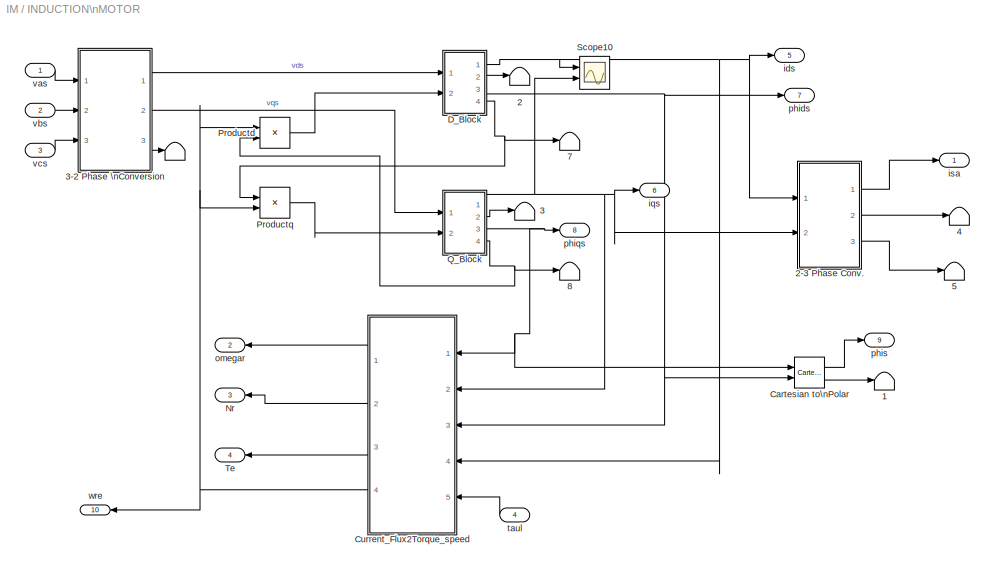
BLOCK [SubSystem] INDUCTION\nMOTOR
  Ports = [4, 10]
  RequestExecContextInheritance = off
  SID = 4
BLOCK [Terminator] INDUCTION\nMOTOR/            
  SID = 9
BLOCK [Terminator] INDUCTION\nMOTOR/            1
  SID = 10
BLOCK [Terminator] INDUCTION\nMOTOR/            2
  SID = 11
BLOCK [Terminator] INDUCTION\nMOTOR/            3
  SID = 12
BLOCK [Terminator] INDUCTION\nMOTOR/            4
  SID = 13
BLOCK [Terminator] INDUCTION\nMOTOR/            5
  SID = 14
BLOCK [Terminator] INDUCTION\nMOTOR/            7
  SID = 15
BLOCK [Terminator] INDUCTION\nMOTOR/            8
  SID = 16
BLOCK [SubSystem] INDUCTION\nMOTOR/2-3 Phase Conv.
  Ports = [2, 3]
  RequestExecContextInheritance = off
  SID = 17
BLOCK [Demux] INDUCTION\nMOTOR/2-3 Phase Conv./Demux
  Outputs = 3
  Ports = [1, 3]
  SID = 20
BLOCK [Gain] INDUCTION\nMOTOR/2-3 Phase Conv./Matrix\nGain
  Gain = [1 0; -1/2 sqrt(3)/2; -1/2 -sqrt(3)/2]
  Multiplication = Matrix(K*u)
  SID = 21
BLOCK [Mux] INDUCTION\nMOTOR/2-3 Phase Conv./Mux
  DisplayOption = bar
  Inputs = 2
  Ports = [2, 1]
  SID = 22
BLOCK [Outport] INDUCTION\nMOTOR/2-3 Phase Conv./a
  IconDisplay = Port number
  SID = 23
BLOCK [Outport] INDUCTION\nMOTOR/2-3 Phase Conv./b
  IconDisplay = Port number
  Port = 2
  SID = 24
BLOCK [Outport] INDUCTION\nMOTOR/2-3 Phase Conv./c
  IconDisplay = Port number
  Port = 3
  SID = 25
BLOCK [Inport] INDUCTION\nMOTOR/2-3 Phase Conv./d
  IconDisplay = Port number
  SID = 18
BLOCK [Inport] INDUCTION\nMOTOR/2-3 Phase Conv./q
  IconDisplay = Port number
  Port = 2
  SID = 19
BLOCK [SubSystem] INDUCTION\nMOTOR/3-2 Phase \nConversion
  Ports = [3, 3]
  RequestExecContextInheritance = off
  SID = 26
BLOCK [Outport] INDUCTION\nMOTOR/3-2 Phase \nConversion/0
  IconDisplay = Port number
  Port = 3
  SID = 35
BLOCK [Demux] INDUCTION\nMOTOR/3-2 Phase \nConversion/Demux
  Outputs = 3
  Ports = [1, 3]
  SID = 30
BLOCK [Gain] INDUCTION\nMOTOR/3-2 Phase \nConversion/Matrix\nGain
  Gain = [2/3 -1/3 -1/3; 0 sqrt(3)/3 -sqrt(3)/3; 1/3 1/3 1/3]
  Multiplication = Matrix(K*u)
  SID = 31
BLOCK [Mux] INDUCTION\nMOTOR/3-2 Phase \nConversion/Mux
  DisplayOption = bar
  Inputs = 3
  Ports = [3, 1]
  SID = 32
BLOCK [Inport] INDUCTION\nMOTOR/3-2 Phase \nConversion/a
  IconDisplay = Port number
  SID = 27
BLOCK [Inport] INDUCTION\nMOTOR/3-2 Phase \nConversion/b
  IconDisplay = Port number
  Port = 2
  SID = 28
BLOCK [Inport] INDUCTION\nMOTOR/3-2 Phase \nConversion/c
  IconDisplay = Port number
  Port = 3
  SID = 29
BLOCK [Outport] INDUCTION\nMOTOR/3-2 Phase \nConversion/d
  IconDisplay = Port number
  SID = 33
BLOCK [Outport] INDUCTION\nMOTOR/3-2 Phase \nConversion/q
  IconDisplay = Port number
  Port = 2
  SID = 34
BLOCK [Reference] INDUCTION\nMOTOR/Cartesian to\nPolar  REF=simulink_extras/Transformations/Cartesian to\nPolar
  FunctionWithSeparateData = off
  Ports = [2, 2]
  RTWMemSecDataConstants = Inherit from model
  RTWMemSecDataInternal = Inherit from model
  RTWMemSecDataParameters = Inherit from model
  RTWMemSecFuncExecute = Inherit from model
  RTWMemSecFuncInitTerm = Inherit from model
  SID = 36
  ShowPortLabels = FromPortIcon
  SourceBlock = simulink_extras/Transformations/Cartesian to\nPolar
  SourceProductBaseCode = SL
  SourceProductName = Simulink
  SourceType = Cart2Polar
  SystemSampleTime = -1
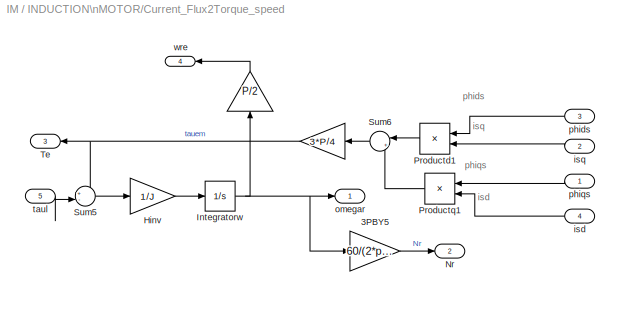
BLOCK [SubSystem] INDUCTION\nMOTOR/Current_Flux2Torque_speed
  Ports = [5, 4]
  RequestExecContextInheritance = off
  SID = 37
BLOCK [Gain] INDUCTION\nMOTOR/Current_Flux2Torque_speed/ 
  Gain = P/2
  SID = 43
BLOCK [Gain] INDUCTION\nMOTOR/Current_Flux2Torque_speed/  
  Gain = 3*P/4
  SID = 44
BLOCK [Gain] INDUCTION\nMOTOR/Current_Flux2Torque_speed/3PBY5
  Gain = 60/(2*pi)
  SID = 45
BLOCK [Gain] INDUCTION\nMOTOR/Current_Flux2Torque_speed/Hinv
  Gain = 1/J
  SID = 46
BLOCK [Integrator] INDUCTION\nMOTOR/Current_Flux2Torque_speed/Integratorw
  Ports = [1, 1]
  SID = 47
BLOCK [Outport] INDUCTION\nMOTOR/Current_Flux2Torque_speed/Nr
  IconDisplay = Port number
  Port = 2
  SID = 53
BLOCK [Product] INDUCTION\nMOTOR/Current_Flux2Torque_speed/Productd1
  Ports = [2, 1]
  RndMeth = Floor
  SID = 48
BLOCK [Product] INDUCTION\nMOTOR/Current_Flux2Torque_speed/Productq1
  Ports = [2, 1]
  RndMeth = Floor
  SID = 49
BLOCK [Sum] INDUCTION\nMOTOR/Current_Flux2Torque_speed/Sum5
  IconShape = round
  Inputs = +-
  Ports = [2, 1]
  SID = 50
BLOCK [Sum] INDUCTION\nMOTOR/Current_Flux2Torque_speed/Sum6
  IconShape = round
  Inputs = |+-
  Ports = [2, 1]
  SID = 51
BLOCK [Outport] INDUCTION\nMOTOR/Current_Flux2Torque_speed/Te
  IconDisplay = Port number
  Port = 3
  SID = 54
BLOCK [Inport] INDUCTION\nMOTOR/Current_Flux2Torque_speed/isd
  IconDisplay = Port number
  Port = 4
  SID = 41
BLOCK [Inport] INDUCTION\nMOTOR/Current_Flux2Torque_speed/isq
  IconDisplay = Port number
  Port = 2
  SID = 39
BLOCK [Outport] INDUCTION\nMOTOR/Current_Flux2Torque_speed/omegar
  IconDisplay = Port number
  SID = 52
BLOCK [Inport] INDUCTION\nMOTOR/Current_Flux2Torque_speed/phids
  IconDisplay = Port number
  Port = 3
  SID = 40
BLOCK [Inport] INDUCTION\nMOTOR/Current_Flux2Torque_speed/phiqs
  IconDisplay = Port number
  SID = 38
BLOCK [Inport] INDUCTION\nMOTOR/Current_Flux2Torque_speed/taul
  IconDisplay = Port number
  Port = 5
  SID = 42
BLOCK [Outport] INDUCTION\nMOTOR/Current_Flux2Torque_speed/wre
  IconDisplay = Port number
  Port = 4
  SID = 55
BLOCK [SubSystem] INDUCTION\nMOTOR/D_Block
  Ports = [2, 4]
  RequestExecContextInheritance = off
  SID = 60
BLOCK [Inport] INDUCTION\nMOTOR/D_Block/ 
  IconDisplay = Port number
  Port = 2
  SID = 62
BLOCK [Integrator] INDUCTION\nMOTOR/D_Block/      
  Ports = [1, 1]
  SID = 63
BLOCK [Integrator] INDUCTION\nMOTOR/D_Block/      1
  Ports = [1, 1]
  SID = 64
BLOCK [Gain] INDUCTION\nMOTOR/D_Block/LrBY sigmasqd
  Gain = Lr/sigma
  SID = 65
BLOCK [Gain] INDUCTION\nMOTOR/D_Block/LsBYsigmasqd
  Gain = Ls/sigma
  SID = 66
BLOCK [Gain] INDUCTION\nMOTOR/D_Block/MBYsigmasqd
  Gain = M/sigma
  SID = 67
BLOCK [Gain] INDUCTION\nMOTOR/D_Block/MBYsigmasqd2
  Gain = M/sigma
  SID = 68
BLOCK [Gain] INDUCTION\nMOTOR/D_Block/Rrd
  Gain = rr
  SID = 69
BLOCK [Gain] INDUCTION\nMOTOR/D_Block/Rsd
  Gain = rs
  SID = 70
BLOCK [Sum] INDUCTION\nMOTOR/D_Block/Sum
  IconShape = round
  Inputs = |+-
  Ports = [2, 1]
  SID = 71
BLOCK [Sum] INDUCTION\nMOTOR/D_Block/Sum1
  IconShape = round
  Inputs = -+|
  Ports = [2, 1]
  SID = 72
BLOCK [Sum] INDUCTION\nMOTOR/D_Block/Sum2
  IconShape = round
  Inputs = -+|
  Ports = [2, 1]
  SID = 73
BLOCK [Sum] INDUCTION\nMOTOR/D_Block/Sum3
  IconShape = round
  Inputs = |--
  Ports = [2, 1]
  SID = 74
BLOCK [Outport] INDUCTION\nMOTOR/D_Block/idr
  IconDisplay = Port number
  Port = 2
  SID = 76
BLOCK [Outport] INDUCTION\nMOTOR/D_Block/ids
  IconDisplay = Port number
  SID = 75
BLOCK [Outport] INDUCTION\nMOTOR/D_Block/phidr
  IconDisplay = Port number
  Port = 4
  SID = 78
BLOCK [Outport] INDUCTION\nMOTOR/D_Block/phids
  IconDisplay = Port number
  Port = 3
  SID = 77
BLOCK [Inport] INDUCTION\nMOTOR/D_Block/vsd
  IconDisplay = Port number
  SID = 61
BLOCK [Outport] INDUCTION\nMOTOR/Nr
  IconDisplay = Port number
  Port = 3
  SID = 103
BLOCK [Product] INDUCTION\nMOTOR/Productd
  Ports = [2, 1]
  RndMeth = Floor
  SID = 79
BLOCK [Product] INDUCTION\nMOTOR/Productq
  Ports = [2, 1]
  RndMeth = Floor
  SID = 80
BLOCK [SubSystem] INDUCTION\nMOTOR/Q_Block
  Ports = [2, 4]
  RequestExecContextInheritance = off
  SID = 81
BLOCK [Inport] INDUCTION\nMOTOR/Q_Block/ 
  IconDisplay = Port number
  Port = 2
  SID = 83
BLOCK [Integrator] INDUCTION\nMOTOR/Q_Block/      
  Ports = [1, 1]
  SID = 84
BLOCK [Integrator] INDUCTION\nMOTOR/Q_Block/      1
  Ports = [1, 1]
  SID = 85
BLOCK [Gain] INDUCTION\nMOTOR/Q_Block/LrBY sigmasqd
  Gain = Lr/sigma
  SID = 86
BLOCK [Gain] INDUCTION\nMOTOR/Q_Block/LsBYsigmasqd
  Gain = Ls/sigma
  SID = 87
BLOCK [Gain] INDUCTION\nMOTOR/Q_Block/MBYsigmasqd
  Gain = M/sigma
  SID = 88
BLOCK [Gain] INDUCTION\nMOTOR/Q_Block/MBYsigmasqd2
  Gain = M/sigma
  SID = 89
BLOCK [Gain] INDUCTION\nMOTOR/Q_Block/Rrd
  Gain = rr
  SID = 90
BLOCK [Gain] INDUCTION\nMOTOR/Q_Block/Rsd
  Gain = rs
  SID = 91
BLOCK [Sum] INDUCTION\nMOTOR/Q_Block/Sum
  IconShape = round
  Inputs = |+-
  Ports = [2, 1]
  SID = 92
BLOCK [Sum] INDUCTION\nMOTOR/Q_Block/Sum1
  IconShape = round
  Inputs = -+|
  Ports = [2, 1]
  SID = 93
BLOCK [Sum] INDUCTION\nMOTOR/Q_Block/Sum2
  IconShape = round
  Inputs = -+|
  Ports = [2, 1]
  SID = 94
BLOCK [Sum] INDUCTION\nMOTOR/Q_Block/Sum3
  IconShape = round
  Inputs = |+-
  Ports = [2, 1]
  SID = 95
BLOCK [Outport] INDUCTION\nMOTOR/Q_Block/iqr
  IconDisplay = Port number
  Port = 2
  SID = 97
BLOCK [Outport] INDUCTION\nMOTOR/Q_Block/iqs
  IconDisplay = Port number
  SID = 96
BLOCK [Outport] INDUCTION\nMOTOR/Q_Block/phiqr
  IconDisplay = Port number
  Port = 4
  SID = 99
BLOCK [Outport] INDUCTION\nMOTOR/Q_Block/phiqs
  IconDisplay = Port number
  Port = 3
  SID = 98
BLOCK [Inport] INDUCTION\nMOTOR/Q_Block/vsq
  IconDisplay = Port number
  SID = 82
BLOCK [Scope] INDUCTION\nMOTOR/Scope10
  Floating = off
  NumInputPorts = 2
  Ports = [2]
  SID = 100
  ScopeSpecificationString = C++SS(StrPVP('Location','[5, 60, 805, 573]'),StrPVP('Open','off'),StrPVP('ZoomMode','xonly'),MxPVP('AxesTitles',54,'struct(''axes1'',''%<SignalLabel>'',''axes2'',''%<SignalLabel>'')'),StrPVP('YMin','-4.5~-5'),StrPVP('YMax','3~5'),StrPVP('SaveName','ScopeData6'),StrPVP('DataFormat','StructureWithTime'),StrPVP('LimitDataPoints','off'),StrPVP('BlockParamSampleTime','0'),StrPVP('Decimation','1'),StrPV...<+33ch>
BLOCK [Outport] INDUCTION\nMOTOR/Te
  IconDisplay = Port number
  Port = 4
  SID = 104
BLOCK [Outport] INDUCTION\nMOTOR/ids
  IconDisplay = Port number
  Port = 5
  SID = 105
BLOCK [Outport] INDUCTION\nMOTOR/iqs
  IconDisplay = Port number
  Port = 6
  SID = 106
BLOCK [Outport] INDUCTION\nMOTOR/isa
  IconDisplay = Port number
  SID = 101
BLOCK [Outport] INDUCTION\nMOTOR/omegar
  IconDisplay = Port number
  Port = 2
  SID = 102
BLOCK [Outport] INDUCTION\nMOTOR/phids
  IconDisplay = Port number
  Port = 7
  SID = 107
BLOCK [Outport] INDUCTION\nMOTOR/phiqs
  IconDisplay = Port number
  Port = 8
  SID = 108
BLOCK [Outport] INDUCTION\nMOTOR/phis
  IconDisplay = Port number
  Port = 9
  SID = 109
BLOCK [Inport] INDUCTION\nMOTOR/taul
  IconDisplay = Port number
  Port = 4
  SID = 8
BLOCK [Inport] INDUCTION\nMOTOR/vas
  IconDisplay = Port number
  SID = 5
BLOCK [Inport] INDUCTION\nMOTOR/vbs
  IconDisplay = Port number
  Port = 2
  SID = 6
BLOCK [Inport] INDUCTION\nMOTOR/vcs
  IconDisplay = Port number
  Port = 3
  SID = 7
BLOCK [Outport] INDUCTION\nMOTOR/wre
  IconDisplay = Port number
  Port = 10
  SID = 110
BLOCK [Scope] Scope
  Floating = off
  NumInputPorts = 1
  Ports = [1]
  SID = 111
  ScopeSpecificationString = C++SS(StrPVP('Location','[188, 390, 512, 629]'),StrPVP('Open','off'),MxPVP('AxesTitles',54,'struct(''axes1'',''%<SignalLabel>'')'),StrPVP('DataFormat','StructureWithTime'),StrPVP('LimitDataPoints','off'),StrPVP('BlockParamSampleTime','0'),StrPVP('Decimation','1'),StrPVP('BlockParamSampleInput','off'))
BLOCK [Scope] Scope1
  Floating = off
  NumInputPorts = 1
  Ports = [1]
  SID = 112
  ScopeSpecificationString = C++SS(StrPVP('Location','[188, 390, 512, 629]'),StrPVP('Open','off'),MxPVP('AxesTitles',54,'struct(''axes1'',''%<SignalLabel>'')'),StrPVP('SaveName','ScopeData1'),StrPVP('DataFormat','StructureWithTime'),StrPVP('LimitDataPoints','off'),StrPVP('BlockParamSampleTime','0'),StrPVP('Decimation','1'),StrPVP('BlockParamSampleInput','off'))
BLOCK [Scope] Scope2
  Floating = off
  NumInputPorts = 1
  Ports = [1]
  SID = 113
  ScopeSpecificationString = C++SS(StrPVP('Location','[819, 355, 1164, 590]'),StrPVP('Open','off'),MxPVP('AxesTitles',54,'struct(''axes1'',''%<SignalLabel>'')'),StrPVP('YMin','140'),StrPVP('YMax','280'),StrPVP('SaveName','ScopeData2'),StrPVP('DataFormat','StructureWithTime'),StrPVP('LimitDataPoints','off'),StrPVP('BlockParamSampleTime','0'),StrPVP('Decimation','1'),StrPVP('BlockParamSampleInput','off'))
BLOCK [Scope] Scope3
  Floating = off
  NumInputPorts = 1
  Ports = [1]
  SID = 114
  ScopeSpecificationString = C++SS(StrPVP('Location','[789, 283, 1101, 522]'),StrPVP('Open','off'),MxPVP('AxesTitles',54,'struct(''axes1'',''%<SignalLabel>'')'),StrPVP('SaveName','ScopeData3'),StrPVP('DataFormat','StructureWithTime'),StrPVP('LimitDataPoints','off'),StrPVP('BlockParamSampleTime','0'),StrPVP('Decimation','1'),StrPVP('BlockParamSampleInput','off'))
BLOCK [Scope] Scope4
  Floating = off
  NumInputPorts = 1
  Ports = [1]
  SID = 115
  ScopeSpecificationString = C++SS(StrPVP('Location','[188, 390, 512, 629]'),StrPVP('Open','off'),MxPVP('AxesTitles',54,'struct(''axes1'',''%<SignalLabel>'')'),StrPVP('SaveName','ScopeData4'),StrPVP('DataFormat','StructureWithTime'),StrPVP('LimitDataPoints','off'),StrPVP('BlockParamSampleTime','0'),StrPVP('Decimation','1'),StrPVP('BlockParamSampleInput','off'))
BLOCK [Scope] Scope5
  Floating = off
  NumInputPorts = 1
  Ports = [1]
  SID = 116
  ScopeSpecificationString = C++SS(StrPVP('Location','[188, 390, 512, 629]'),StrPVP('Open','off'),MxPVP('AxesTitles',54,'struct(''axes1'',''%<SignalLabel>'')'),StrPVP('SaveName','ScopeData5'),StrPVP('DataFormat','StructureWithTime'),StrPVP('LimitDataPoints','off'),StrPVP('BlockParamSampleTime','0'),StrPVP('Decimation','1'),StrPVP('BlockParamSampleInput','off'))
BLOCK [Scope] Scope6
  Floating = off
  NumInputPorts = 1
  Ports = [1]
  SID = 117
  ScopeSpecificationString = C++SS(StrPVP('Location','[188, 390, 512, 629]'),StrPVP('Open','off'),MxPVP('AxesTitles',54,'struct(''axes1'',''%<SignalLabel>'')'),StrPVP('SaveName','ScopeData7'),StrPVP('DataFormat','StructureWithTime'),StrPVP('LimitDataPoints','off'),StrPVP('BlockParamSampleTime','0'),StrPVP('Decimation','1'),StrPVP('BlockParamSampleInput','off'))
BLOCK [Scope] Scope7
  Floating = off
  NumInputPorts = 1
  Ports = [1]
  SID = 118
  ScopeSpecificationString = C++SS(StrPVP('Location','[188, 390, 512, 629]'),StrPVP('Open','off'),MxPVP('AxesTitles',54,'struct(''axes1'',''%<SignalLabel>'')'),StrPVP('SaveName','ScopeData8'),StrPVP('DataFormat','StructureWithTime'),StrPVP('LimitDataPoints','off'),StrPVP('BlockParamSampleTime','0'),StrPVP('Decimation','1'),StrPVP('BlockParamSampleInput','off'))
BLOCK [Step] TL
  SID = 119
  SampleTime = 0
BLOCK [Reference] XY Graph  REF=simulink/Sinks/XY Graph
  FunctionWithSeparateData = off
  Ports = [2]
  RTWMemSecDataConstants = Inherit from model
  RTWMemSecDataInternal = Inherit from model
  RTWMemSecDataParameters = Inherit from model
  RTWMemSecFuncExecute = Inherit from model
  RTWMemSecFuncInitTerm = Inherit from model
  SID = 120
  ShowPortLabels = FromPortIcon
  SourceBlock = simulink/Sinks/XY Graph
  SourceProductBaseCode = SL
  SourceProductName = Simulink
  SourceType = XY scope.
  SystemSampleTime = -1
  st = -1
  xmax = 1.5
  xmin = -1.5
  ymax = 1.5
  ymin = -1.5
ANNOTATION (root): Modeling of Induction Motor\nAuthor: Siva Ganesh Malla\nIIT Bhubaneswar\nIndia\nEmail: <email>
ANNOTATION INDUCTION\nMOTOR/Current_Flux2Torque_speed: isd
ANNOTATION INDUCTION\nMOTOR/Current_Flux2Torque_speed: isq
ANNOTATION INDUCTION\nMOTOR/Current_Flux2Torque_speed: phids
ANNOTATION INDUCTION\nMOTOR/Current_Flux2Torque_speed: phiqs
LINE A:1 -> INDUCTION\nMOTOR:1
LINE B:1 -> INDUCTION\nMOTOR:2
LINE C:1 -> INDUCTION\nMOTOR:3
LINE INDUCTION\nMOTOR/2-3 Phase Conv./Demux:1 -> INDUCTION\nMOTOR/2-3 Phase Conv./a:1
LINE INDUCTION\nMOTOR/2-3 Phase Conv./Demux:2 -> INDUCTION\nMOTOR/2-3 Phase Conv./b:1
LINE INDUCTION\nMOTOR/2-3 Phase Conv./Demux:3 -> INDUCTION\nMOTOR/2-3 Phase Conv./c:1
LINE INDUCTION\nMOTOR/2-3 Phase Conv./Matrix\nGain:1 -> INDUCTION\nMOTOR/2-3 Phase Conv./Demux:1
LINE INDUCTION\nMOTOR/2-3 Phase Conv./Mux:1 -> INDUCTION\nMOTOR/2-3 Phase Conv./Matrix\nGain:1
LINE INDUCTION\nMOTOR/2-3 Phase Conv./d:1 -> INDUCTION\nMOTOR/2-3 Phase Conv./Mux:1
LINE INDUCTION\nMOTOR/2-3 Phase Conv./q:1 -> INDUCTION\nMOTOR/2-3 Phase Conv./Mux:2
LINE INDUCTION\nMOTOR/2-3 Phase Conv.:1 -> INDUCTION\nMOTOR/isa:1
LINE INDUCTION\nMOTOR/2-3 Phase Conv.:2 -> INDUCTION\nMOTOR/            4:1
LINE INDUCTION\nMOTOR/2-3 Phase Conv.:3 -> INDUCTION\nMOTOR/            5:1
LINE INDUCTION\nMOTOR/3-2 Phase \nConversion/Demux:1 -> INDUCTION\nMOTOR/3-2 Phase \nConversion/d:1
LINE INDUCTION\nMOTOR/3-2 Phase \nConversion/Demux:2 -> INDUCTION\nMOTOR/3-2 Phase \nConversion/q:1
LINE INDUCTION\nMOTOR/3-2 Phase \nConversion/Demux:3 -> INDUCTION\nMOTOR/3-2 Phase \nConversion/0:1
LINE INDUCTION\nMOTOR/3-2 Phase \nConversion/Matrix\nGain:1 -> INDUCTION\nMOTOR/3-2 Phase \nConversion/Demux:1
LINE INDUCTION\nMOTOR/3-2 Phase \nConversion/Mux:1 -> INDUCTION\nMOTOR/3-2 Phase \nConversion/Matrix\nGain:1
LINE INDUCTION\nMOTOR/3-2 Phase \nConversion/a:1 -> INDUCTION\nMOTOR/3-2 Phase \nConversion/Mux:1
LINE INDUCTION\nMOTOR/3-2 Phase \nConversion/b:1 -> INDUCTION\nMOTOR/3-2 Phase \nConversion/Mux:2
LINE INDUCTION\nMOTOR/3-2 Phase \nConversion/c:1 -> INDUCTION\nMOTOR/3-2 Phase \nConversion/Mux:3
LINE INDUCTION\nMOTOR/3-2 Phase \nConversion:1 -> INDUCTION\nMOTOR/D_Block:1
LINE INDUCTION\nMOTOR/3-2 Phase \nConversion:2 -> INDUCTION\nMOTOR/Q_Block:1
LINE INDUCTION\nMOTOR/3-2 Phase \nConversion:3 -> INDUCTION\nMOTOR/            :1
LINE INDUCTION\nMOTOR/Cartesian to\nPolar:1 -> INDUCTION\nMOTOR/phis:1
LINE INDUCTION\nMOTOR/Cartesian to\nPolar:2 -> INDUCTION\nMOTOR/            1:1
NET INDUCTION\nMOTOR/Current_Flux2Torque_speed/  :1 -> INDUCTION\nMOTOR/Current_Flux2Torque_speed/Sum5:1, INDUCTION\nMOTOR/Current_Flux2Torque_speed/Te:1
LINE INDUCTION\nMOTOR/Current_Flux2Torque_speed/ :1 -> INDUCTION\nMOTOR/Current_Flux2Torque_speed/wre:1
LINE INDUCTION\nMOTOR/Current_Flux2Torque_speed/3PBY5:1 -> INDUCTION\nMOTOR/Current_Flux2Torque_speed/Nr:1
LINE INDUCTION\nMOTOR/Current_Flux2Torque_speed/Hinv:1 -> INDUCTION\nMOTOR/Current_Flux2Torque_speed/Integratorw:1
NET INDUCTION\nMOTOR/Current_Flux2Torque_speed/Integratorw:1 -> INDUCTION\nMOTOR/Current_Flux2Torque_speed/ :1, INDUCTION\nMOTOR/Current_Flux2Torque_speed/3PBY5:1, INDUCTION\nMOTOR/Current_Flux2Torque_speed/omegar:1
LINE INDUCTION\nMOTOR/Current_Flux2Torque_speed/Productd1:1 -> INDUCTION\nMOTOR/Current_Flux2Torque_speed/Sum6:1
LINE INDUCTION\nMOTOR/Current_Flux2Torque_speed/Productq1:1 -> INDUCTION\nMOTOR/Current_Flux2Torque_speed/Sum6:2
LINE INDUCTION\nMOTOR/Current_Flux2Torque_speed/Sum5:1 -> INDUCTION\nMOTOR/Current_Flux2Torque_speed/Hinv:1
LINE INDUCTION\nMOTOR/Current_Flux2Torque_speed/Sum6:1 -> INDUCTION\nMOTOR/Current_Flux2Torque_speed/  :1
LINE INDUCTION\nMOTOR/Current_Flux2Torque_speed/isd:1 -> INDUCTION\nMOTOR/Current_Flux2Torque_speed/Productq1:2
LINE INDUCTION\nMOTOR/Current_Flux2Torque_speed/isq:1 -> INDUCTION\nMOTOR/Current_Flux2Torque_speed/Productd1:2
LINE INDUCTION\nMOTOR/Current_Flux2Torque_speed/phids:1 -> INDUCTION\nMOTOR/Current_Flux2Torque_speed/Productd1:1
LINE INDUCTION\nMOTOR/Current_Flux2Torque_speed/phiqs:1 -> INDUCTION\nMOTOR/Current_Flux2Torque_speed/Productq1:1
LINE INDUCTION\nMOTOR/Current_Flux2Torque_speed/taul:1 -> INDUCTION\nMOTOR/Current_Flux2Torque_speed/Sum5:2
LINE INDUCTION\nMOTOR/Current_Flux2Torque_speed:1 -> INDUCTION\nMOTOR/omegar:1
LINE INDUCTION\nMOTOR/Current_Flux2Torque_speed:2 -> INDUCTION\nMOTOR/Nr:1
LINE INDUCTION\nMOTOR/Current_Flux2Torque_speed:3 -> INDUCTION\nMOTOR/Te:1
NET INDUCTION\nMOTOR/Current_Flux2Torque_speed:4 -> INDUCTION\nMOTOR/Productd:1, INDUCTION\nMOTOR/Productq:2, INDUCTION\nMOTOR/wre:1
NET INDUCTION\nMOTOR/D_Block/      1:1 -> INDUCTION\nMOTOR/D_Block/LsBYsigmasqd:1, INDUCTION\nMOTOR/D_Block/MBYsigmasqd2:1, INDUCTION\nMOTOR/D_Block/phidr:1
NET INDUCTION\nMOTOR/D_Block/      :1 -> INDUCTION\nMOTOR/D_Block/LrBY sigmasqd:1, INDUCTION\nMOTOR/D_Block/MBYsigmasqd:1, INDUCTION\nMOTOR/D_Block/phids:1
LINE INDUCTION\nMOTOR/D_Block/ :1 -> INDUCTION\nMOTOR/D_Block/Sum3:1
LINE INDUCTION\nMOTOR/D_Block/LrBY sigmasqd:1 -> INDUCTION\nMOTOR/D_Block/Sum:1
LINE INDUCTION\nMOTOR/D_Block/LsBYsigmasqd:1 -> INDUCTION\nMOTOR/D_Block/Sum1:2
LINE INDUCTION\nMOTOR/D_Block/MBYsigmasqd2:1 -> INDUCTION\nMOTOR/D_Block/Sum:2
LINE INDUCTION\nMOTOR/D_Block/MBYsigmasqd:1 -> INDUCTION\nMOTOR/D_Block/Sum1:1
LINE INDUCTION\nMOTOR/D_Block/Rrd:1 -> INDUCTION\nMOTOR/D_Block/Sum3:2
LINE INDUCTION\nMOTOR/D_Block/Rsd:1 -> INDUCTION\nMOTOR/D_Block/Sum2:1
NET INDUCTION\nMOTOR/D_Block/Sum1:1 -> INDUCTION\nMOTOR/D_Block/Rrd:1, INDUCTION\nMOTOR/D_Block/idr:1
LINE INDUCTION\nMOTOR/D_Block/Sum2:1 -> INDUCTION\nMOTOR/D_Block/      :1
LINE INDUCTION\nMOTOR/D_Block/Sum3:1 -> INDUCTION\nMOTOR/D_Block/      1:1
NET INDUCTION\nMOTOR/D_Block/Sum:1 -> INDUCTION\nMOTOR/D_Block/Rsd:1, INDUCTION\nMOTOR/D_Block/ids:1
LINE INDUCTION\nMOTOR/D_Block/vsd:1 -> INDUCTION\nMOTOR/D_Block/Sum2:2
NET INDUCTION\nMOTOR/D_Block:1 -> INDUCTION\nMOTOR/2-3 Phase Conv.:1, INDUCTION\nMOTOR/Current_Flux2Torque_speed:4, INDUCTION\nMOTOR/Scope10:1, INDUCTION\nMOTOR/ids:1
LINE INDUCTION\nMOTOR/D_Block:2 -> INDUCTION\nMOTOR/            2:1
NET INDUCTION\nMOTOR/D_Block:3 -> INDUCTION\nMOTOR/Cartesian to\nPolar:2, INDUCTION\nMOTOR/Current_Flux2Torque_speed:3, INDUCTION\nMOTOR/phids:1
NET INDUCTION\nMOTOR/D_Block:4 -> INDUCTION\nMOTOR/            7:1, INDUCTION\nMOTOR/Productq:1
LINE INDUCTION\nMOTOR/Productd:1 -> INDUCTION\nMOTOR/D_Block:2
LINE INDUCTION\nMOTOR/Productq:1 -> INDUCTION\nMOTOR/Q_Block:2
NET INDUCTION\nMOTOR/Q_Block/      1:1 -> INDUCTION\nMOTOR/Q_Block/LsBYsigmasqd:1, INDUCTION\nMOTOR/Q_Block/MBYsigmasqd2:1, INDUCTION\nMOTOR/Q_Block/phiqr:1
NET INDUCTION\nMOTOR/Q_Block/      :1 -> INDUCTION\nMOTOR/Q_Block/LrBY sigmasqd:1, INDUCTION\nMOTOR/Q_Block/MBYsigmasqd:1, INDUCTION\nMOTOR/Q_Block/phiqs:1
LINE INDUCTION\nMOTOR/Q_Block/ :1 -> INDUCTION\nMOTOR/Q_Block/Sum3:1
LINE INDUCTION\nMOTOR/Q_Block/LrBY sigmasqd:1 -> INDUCTION\nMOTOR/Q_Block/Sum:1
LINE INDUCTION\nMOTOR/Q_Block/LsBYsigmasqd:1 -> INDUCTION\nMOTOR/Q_Block/Sum1:2
LINE INDUCTION\nMOTOR/Q_Block/MBYsigmasqd2:1 -> INDUCTION\nMOTOR/Q_Block/Sum:2
LINE INDUCTION\nMOTOR/Q_Block/MBYsigmasqd:1 -> INDUCTION\nMOTOR/Q_Block/Sum1:1
LINE INDUCTION\nMOTOR/Q_Block/Rrd:1 -> INDUCTION\nMOTOR/Q_Block/Sum3:2
LINE INDUCTION\nMOTOR/Q_Block/Rsd:1 -> INDUCTION\nMOTOR/Q_Block/Sum2:1
NET INDUCTION\nMOTOR/Q_Block/Sum1:1 -> INDUCTION\nMOTOR/Q_Block/Rrd:1, INDUCTION\nMOTOR/Q_Block/iqr:1
LINE INDUCTION\nMOTOR/Q_Block/Sum2:1 -> INDUCTION\nMOTOR/Q_Block/      :1
LINE INDUCTION\nMOTOR/Q_Block/Sum3:1 -> INDUCTION\nMOTOR/Q_Block/      1:1
NET INDUCTION\nMOTOR/Q_Block/Sum:1 -> INDUCTION\nMOTOR/Q_Block/Rsd:1, INDUCTION\nMOTOR/Q_Block/iqs:1
LINE INDUCTION\nMOTOR/Q_Block/vsq:1 -> INDUCTION\nMOTOR/Q_Block/Sum2:2
NET INDUCTION\nMOTOR/Q_Block:1 -> INDUCTION\nMOTOR/2-3 Phase Conv.:2, INDUCTION\nMOTOR/Current_Flux2Torque_speed:2, INDUCTION\nMOTOR/Scope10:2, INDUCTION\nMOTOR/iqs:1
LINE INDUCTION\nMOTOR/Q_Block:2 -> INDUCTION\nMOTOR/            3:1
NET INDUCTION\nMOTOR/Q_Block:3 -> INDUCTION\nMOTOR/Cartesian to\nPolar:1, INDUCTION\nMOTOR/Current_Flux2Torque_speed:1, INDUCTION\nMOTOR/phiqs:1
NET INDUCTION\nMOTOR/Q_Block:4 -> INDUCTION\nMOTOR/            8:1, INDUCTION\nMOTOR/Productd:2
LINE INDUCTION\nMOTOR/taul:1 -> INDUCTION\nMOTOR/Current_Flux2Torque_speed:5
LINE INDUCTION\nMOTOR/vas:1 -> INDUCTION\nMOTOR/3-2 Phase \nConversion:1
LINE INDUCTION\nMOTOR/vbs:1 -> INDUCTION\nMOTOR/3-2 Phase \nConversion:2
LINE INDUCTION\nMOTOR/vcs:1 -> INDUCTION\nMOTOR/3-2 Phase \nConversion:3
LINE INDUCTION\nMOTOR:1 -> Scope:1
LINE INDUCTION\nMOTOR:10 -> Scope7:1
LINE INDUCTION\nMOTOR:2 -> Scope1:1
LINE INDUCTION\nMOTOR:3 -> Scope2:1
LINE INDUCTION\nMOTOR:4 -> Scope3:1
LINE INDUCTION\nMOTOR:5 -> Scope4:1
LINE INDUCTION\nMOTOR:6 -> Scope5:1
LINE INDUCTION\nMOTOR:7 -> XY Graph:1
LINE INDUCTION\nMOTOR:8 -> XY Graph:2
LINE INDUCTION\nMOTOR:9 -> Scope6:1
LINE TL:1 -> INDUCTION\nMOTOR:4
note: NET lines group one-source signal fan-out (src -> all destinations, sorted); 1:1 wires keep LINE
